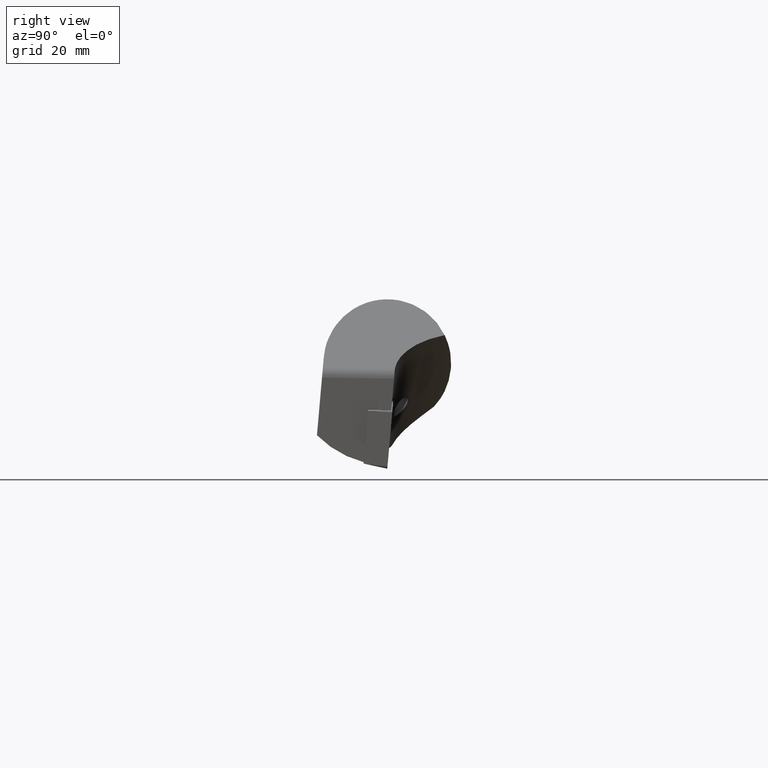
[diagram: clean part render]
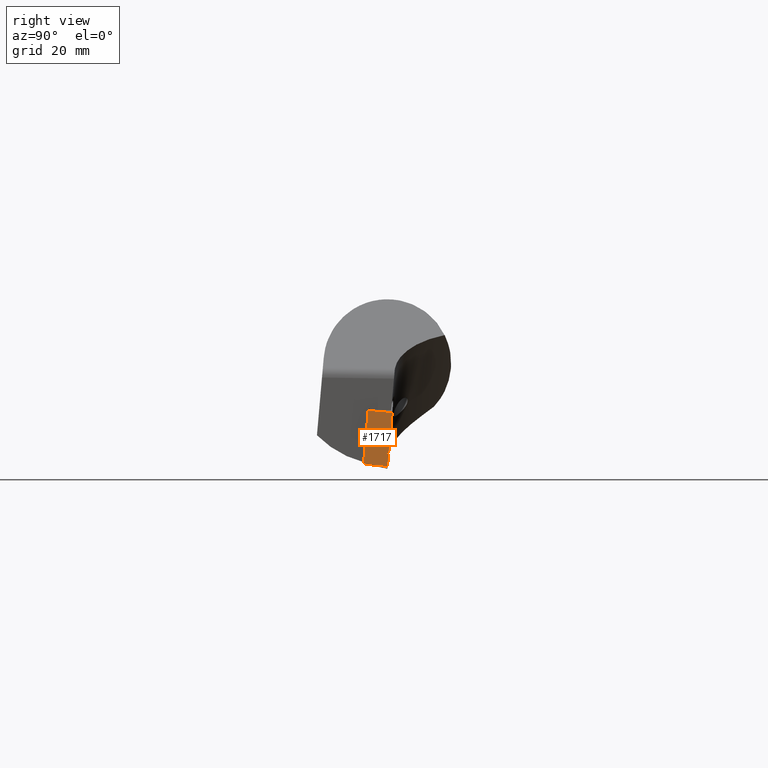
[diagram: same view with one face highlighted and labeled with its STEP entity id]
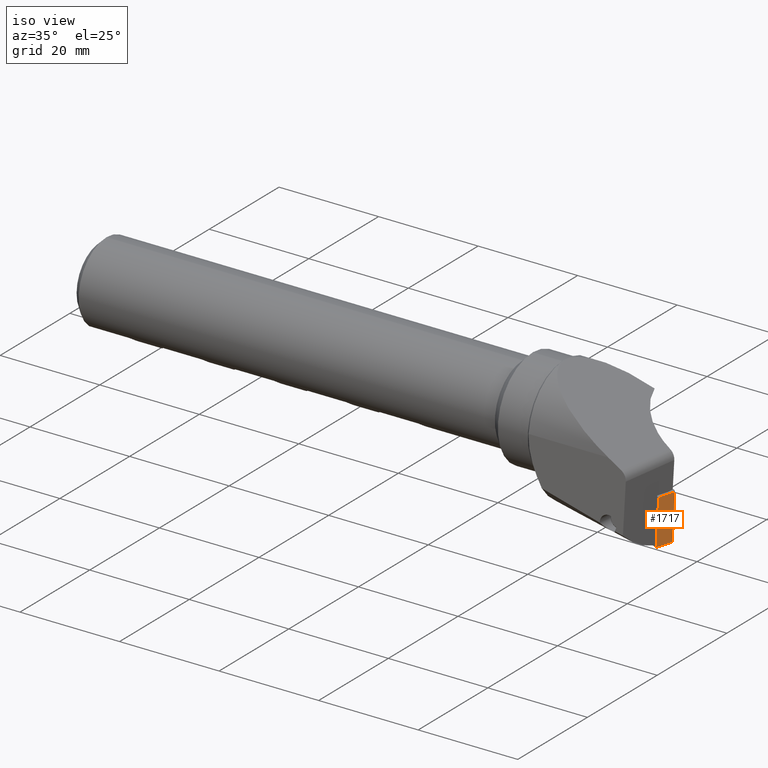
[diagram: same view with one face highlighted and labeled with its STEP entity id]
A machine part, right view. The second image highlights one B-rep face of the part: STEP entity #1717.
A second angle (iso view) of the same face is appended — the face is thin or edge-on in the first view.
In plain terms, the highlighted planar face has unit normal (0.9925, -0.1214, 0.0106).
Its self-contained STEP definition (entity closure, byte-faithful):
#59 = DIRECTION ( 'NONE',  ( -1.000000000000000000, -1.054711873393892800E-015, -1.165734175856407900E-015 ) ) ;
#107 = VECTOR ( 'NONE', #177, 999.9999999999998900 ) ;
#115 = CARTESIAN_POINT ( 'NONE',  ( 3.901050553895633900, -0.9236420824419930800, -4.649091012496935300 ) ) ;
#131 = CARTESIAN_POINT ( 'NONE',  ( 3.660572141010849800, -1.705267871354720900E-010, -4.762500000000048100 ) ) ;
#148 = CARTESIAN_POINT ( 'NONE',  ( 3.660572141010849800, -1.705267871354720900E-010, -4.762500000000048100 ) ) ;
#177 = DIRECTION ( 'NONE',  ( 1.332267629550187500E-015, 0.9925461516413219800, -0.1218693434051483900 ) ) ;
#214 = LINE ( 'NONE', #131, #1832 ) ;
#222 = CARTESIAN_POINT ( 'NONE',  ( 3.660572141010849800, -1.705267871354720900E-010, -4.762500000000048100 ) ) ;
#307 = LINE ( 'NONE', #2885, #3707 ) ;
#344 = DIRECTION ( 'NONE',  ( -0.1437302061857491900, 0.9822404552545257500, -0.1206039629994969000 ) ) ;
#354 = CARTESIAN_POINT ( 'NONE',  ( 3.660572141010842700, -3.970000000170524700, -4.275045293215509200 ) ) ;
#387 = CARTESIAN_POINT ( 'NONE',  ( -5.199025047692353000, -3.469446951953614200E-015, -4.762500000000075700 ) ) ;
#527 = EDGE_CURVE ( 'NONE', #3059, #980, #214, .T. ) ;
#569 = EDGE_CURVE ( 'NONE', #2134, #980, #307, .T. ) ;
#767 = VECTOR ( 'NONE', #344, 1000.000000000000100 ) ;
#788 = DIRECTION ( 'NONE',  ( -1.387778780781443700E-015, -0.1218693434051483900, -0.9925461516413219800 ) ) ;
#904 = LINE ( 'NONE', #148, #107 ) ;
#916 = FACE_OUTER_BOUND ( 'NONE', #3153, .T. ) ;
#939 = ORIENTED_EDGE ( 'NONE', *, *, #3245, .T. ) ;
#980 = VERTEX_POINT ( 'NONE', #387 ) ;
#1122 = ORIENTED_EDGE ( 'NONE', *, *, #527, .F. ) ;
#1370 = DIRECTION ( 'NONE',  ( -1.000000000000000000, -1.054711873393892800E-015, -1.165734175856407900E-015 ) ) ;
#1388 = PLANE ( 'NONE',  #2983 ) ;
#1465 = ORIENTED_EDGE ( 'NONE', *, *, #3418, .F. ) ;
#1717 = ADVANCED_FACE ( 'NONE', ( #916 ), #1388, .T. ) ;
#1808 = VERTEX_POINT ( 'NONE', #2994 ) ;
#1819 = LINE ( 'NONE', #2769, #767 ) ;
#1832 = VECTOR ( 'NONE', #1370, 1000.000000000000000 ) ;
#1883 = ORIENTED_EDGE ( 'NONE', *, *, #2846, .T. ) ;
#1888 = VERTEX_POINT ( 'NONE', #2974 ) ;
#2015 = DIRECTION ( 'NONE',  ( 1.332267629550187300E-015, 0.9925461516413218700, -0.1218693434051483800 ) ) ;
#2084 = ORIENTED_EDGE ( 'NONE', *, *, #3897, .F. ) ;
#2134 = VERTEX_POINT ( 'NONE', #3742 ) ;
#2289 = VERTEX_POINT ( 'NONE', #3205 ) ;
#2483 = DIRECTION ( 'NONE',  ( 0.1017299982538295700, 0.9873968681573442900, -0.1212370908936033600 ) ) ;
#2662 = VECTOR ( 'NONE', #59, 1000.000000000000000 ) ;
#2749 = LINE ( 'NONE', #115, #3497 ) ;
#2769 = CARTESIAN_POINT ( 'NONE',  ( -5.482853753027330700, -1.318076449243286400, -4.600660561964196500 ) ) ;
#2846 = EDGE_CURVE ( 'NONE', #1888, #1808, #2902, .T. ) ;
#2885 = CARTESIAN_POINT ( 'NONE',  ( -5.199025047692332500, -1.705337260293760000E-010, -4.762500000000055200 ) ) ;
#2902 = LINE ( 'NONE', #354, #2662 ) ;
#2974 = CARTESIAN_POINT ( 'NONE',  ( 3.587188928803192000, -3.970000000170531800, -4.275045293215554500 ) ) ;
#2983 = AXIS2_PLACEMENT_3D ( 'NONE', #222, #788, #2015 ) ;
#2994 = CARTESIAN_POINT ( 'NONE',  ( -5.094800586692580100, -3.970000000170534900, -4.275045293215554500 ) ) ;
#3059 = VERTEX_POINT ( 'NONE', #3829 ) ;
#3153 = EDGE_LOOP ( 'NONE', ( #1122, #1465, #2084, #1883, #939, #3346 ) ) ;
#3205 = CARTESIAN_POINT ( 'NONE',  ( 3.660572141010814700, -3.257738571360371700, -4.362500000000064700 ) ) ;
#3245 = EDGE_CURVE ( 'NONE', #1808, #2134, #1819, .T. ) ;
#3346 = ORIENTED_EDGE ( 'NONE', *, *, #569, .T. ) ;
#3418 = EDGE_CURVE ( 'NONE', #2289, #3059, #904, .T. ) ;
#3497 = VECTOR ( 'NONE', #2483, 1000.000000000000100 ) ;
#3707 = VECTOR ( 'NONE', #3803, 999.9999999999998900 ) ;
#3742 = CARTESIAN_POINT ( 'NONE',  ( -5.199025047692345900, -3.257738571360361500, -4.362500000000067300 ) ) ;
#3803 = DIRECTION ( 'NONE',  ( 1.332267629550187500E-015, 0.9925461516413219800, -0.1218693434051483900 ) ) ;
#3829 = CARTESIAN_POINT ( 'NONE',  ( 3.660572141010835600, 3.469446951953614200E-015, -4.762500000000048100 ) ) ;
#3897 = EDGE_CURVE ( 'NONE', #1888, #2289, #2749, .T. ) ;